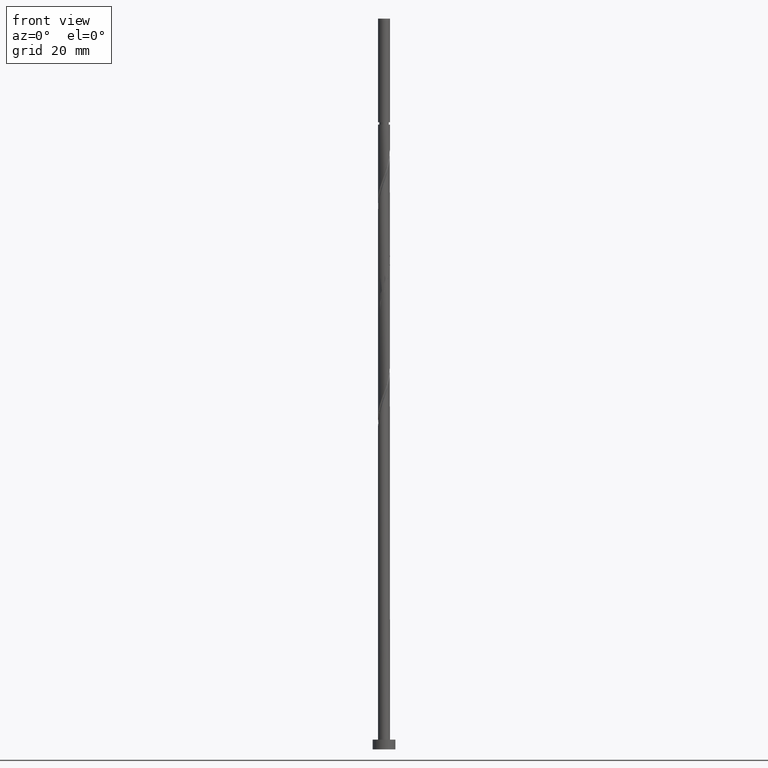
[diagram: clean part render]
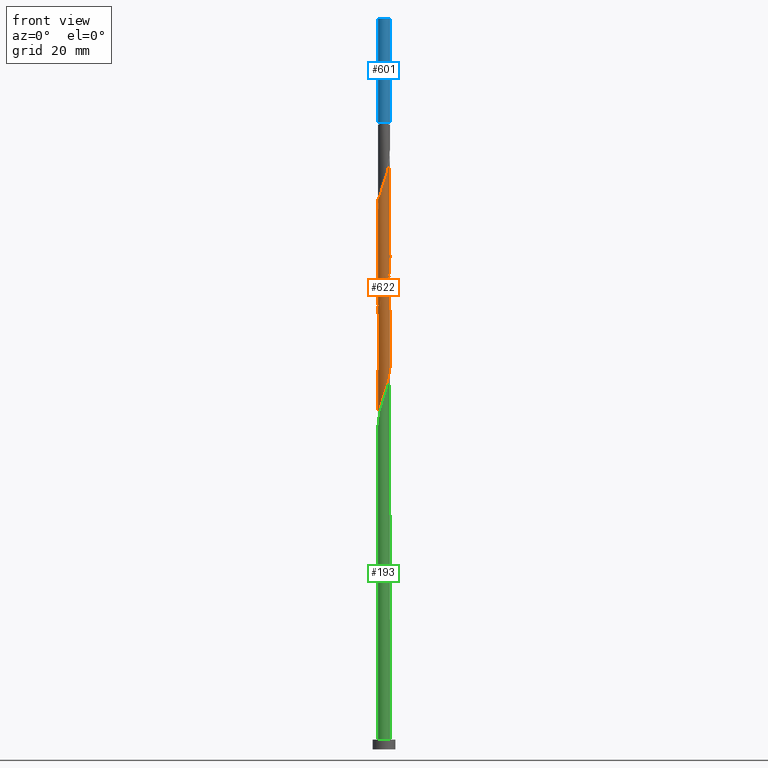
[diagram: same view with three faces highlighted in distinct colors, each labeled with its STEP entity id]
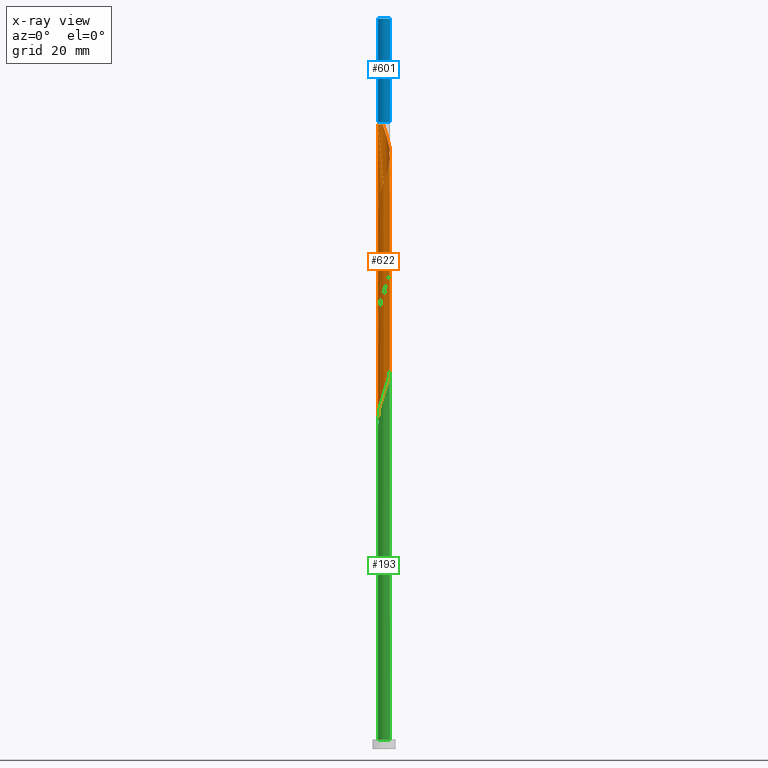
[diagram: x-ray of the same camera — body ghosted, the three highlighted faces saturated]
A machine part, front view with three faces highlighted in distinct colors.
The next image is the same camera in x-ray (body ghosted, the three faces saturated) — at least one of them is partly hidden behind the body in this view.
Their STEP definitions:

[orange] entity #622 — the highlighted cylindrical surface (bore or boss wall) has radius 1.85 mm, axis along (-0, -0, -1).
#7 = CARTESIAN_POINT ( 'NONE',  ( -1.849999999999999645, -2.766450122069689191E-16, 168.4136483083440794 ) ) ;
#8 = ORIENTED_EDGE ( 'NONE', *, *, #311, .T. ) ;
#11 = CARTESIAN_POINT ( 'NONE',  ( 1.224714518025485033, -1.407797719951883186, 113.8778594309117835 ) ) ;
#17 = CARTESIAN_POINT ( 'NONE',  ( 1.764532744969630196, 0.6068313298553991153, 184.7111927642451406 ) ) ;
#19 = CARTESIAN_POINT ( 'NONE',  ( -0.3567350250177434567, 1.831545847880884592, 127.7667483198006408 ) ) ;
#25 = CARTESIAN_POINT ( 'NONE',  ( -1.386031381196460410, 1.225323226882860661, 131.2389705420228836 ) ) ;
#29 = EDGE_CURVE ( 'NONE', #755, #1264, #874, .T. ) ;
#33 = DIRECTION ( 'NONE',  ( -1.000000000000000000, 0.000000000000000000, 0.000000000000000000 ) ) ;
#34 = CARTESIAN_POINT ( 'NONE',  ( -1.407797719951883630, -1.224714518025485255, 138.8778594309117693 ) ) ;
#41 = CARTESIAN_POINT ( 'NONE',  ( 1.542302668961411660, 1.021666519621008629, 121.5167483198006551 ) ) ;
#47 = VERTEX_POINT ( 'NONE', #1036 ) ;
#49 = CARTESIAN_POINT ( 'NONE',  ( -1.846506551455627809, -0.1136378257071205405, 102.0723038753562548 ) ) ;
#69 = VERTEX_POINT ( 'NONE', #1153 ) ;
#87 = CARTESIAN_POINT ( 'NONE',  ( 1.407797719951883630, 1.224714518025485033, 155.5445260975784265 ) ) ;
#96 = CARTESIAN_POINT ( 'NONE',  ( 1.542302668961411660, 1.021666519621008629, 154.8500816531340263 ) ) ;
#97 = CARTESIAN_POINT ( 'NONE',  ( 1.846506551455631806, -0.1136378257071227194, 182.6278594309117693 ) ) ;
#104 = EDGE_LOOP ( 'NONE', ( #1494, #120, #985, #8, #1502, #1125, #489, #373 ) ) ;
#120 = ORIENTED_EDGE ( 'NONE', *, *, #29, .T. ) ;
#126 = CARTESIAN_POINT ( 'NONE',  ( -0.1136378257071217618, -1.846506551455631806, 174.2945260975784834 ) ) ;
#129 = CARTESIAN_POINT ( 'NONE',  ( 0.5876767731171372855, -1.754176732925911475, 111.7945260975784549 ) ) ;
#134 = CARTESIAN_POINT ( 'NONE',  ( -1.813000000000002387, -0.3681453517294508426, 167.3500816531340547 ) ) ;
#142 = CARTESIAN_POINT ( 'NONE',  ( -1.850000000000001865, -0.1859319958229553316, 166.8199413671131879 ) ) ;
#144 = CARTESIAN_POINT ( 'NONE',  ( 1.021666519621008185, -1.542302668961411882, 146.5167483198006835 ) ) ;
#152 = CARTESIAN_POINT ( 'NONE',  ( -1.407797719951883630, -1.224714518025485255, 105.5445260975784691 ) ) ;
#160 = CARTESIAN_POINT ( 'NONE',  ( -1.224714518025485477, 1.407797719951882964, 130.5445260975784549 ) ) ;
#168 = CARTESIAN_POINT ( 'NONE',  ( -1.831545847880884592, -0.3567350250177429016, 102.7667483198006551 ) ) ;
#175 = LINE ( 'NONE', #1589, #683 ) ;
#184 = CARTESIAN_POINT ( 'NONE',  ( -1.812999999999999057, 0.3681453517294506206, 167.3500816531339694 ) ) ;
#190 = CARTESIAN_POINT ( 'NONE',  ( -1.850000000000000089, 0.000000000000000000, 225.0000000000000000 ) ) ;
#194 = CARTESIAN_POINT ( 'NONE',  ( -0.5876767731171377296, 1.754176732925911475, 161.7945260975784265 ) ) ;
#220 = CARTESIAN_POINT ( 'NONE',  ( -1.386031381196464185, -1.225323226882862659, 170.1278594309117977 ) ) ;
#230 = CARTESIAN_POINT ( 'NONE',  ( -0.3681453517295150135, 1.813000000000644096, 192.3500816531340263 ) ) ;
#235 = CARTESIAN_POINT ( 'NONE',  ( 1.224714518025485033, -1.407797719951883186, 147.2111927642451121 ) ) ;
#249 = CARTESIAN_POINT ( 'NONE',  ( -0.1294593736035052345, 1.861467255030375467, 191.6556372086895976 ) ) ;
#251 = CARTESIAN_POINT ( 'NONE',  ( 1.655940494668531215, -0.8248400318346202909, 115.9611927642451121 ) ) ;
#257 = CARTESIAN_POINT ( 'NONE',  ( -1.655940494668535212, -0.8248400318346200688, 168.7389705420229120 ) ) ;
#259 = CARTESIAN_POINT ( 'NONE',  ( -0.6068313298553997814, -1.764532744969626643, 141.6556372086895692 ) ) ;
#269 = CARTESIAN_POINT ( 'NONE',  ( 1.407797719951883630, 1.224714518025485033, 122.2111927642451406 ) ) ;
#277 = CARTESIAN_POINT ( 'NONE',  ( -0.1294593736035025144, -1.861467255030371915, 109.7111927642451263 ) ) ;
#283 = CARTESIAN_POINT ( 'NONE',  ( -1.021666519621009073, 1.542302668961411438, 129.8500816531339979 ) ) ;
#291 = CARTESIAN_POINT ( 'NONE',  ( -1.849999999999999423, -2.258021450986611860E-15, 101.7469816416774222 ) ) ;
#306 = CARTESIAN_POINT ( 'NONE',  ( -1.849999999999998979, 0.1859319958229587455, 167.8802219391548647 ) ) ;
#311 = EDGE_CURVE ( 'NONE', #47, #1092, #175, .T. ) ;
#313 = CARTESIAN_POINT ( 'NONE',  ( -1.547348244367437342, 1.042848733813839468, 165.2667483198006835 ) ) ;
#341 = CARTESIAN_POINT ( 'NONE',  ( 1.676807617970941466, -0.8186185212165344449, 180.5445260975784549 ) ) ;
#355 = CARTESIAN_POINT ( 'NONE',  ( 1.386031381196460410, -1.225323226882861771, 147.9056372086895408 ) ) ;
#362 = EDGE_CURVE ( 'NONE', #755, #1590, #1326, .T. ) ;
#372 = CARTESIAN_POINT ( 'NONE',  ( -1.850000000000002975, 1.181348971045967581E-15, 166.2865149979239447 ) ) ;
#373 = ORIENTED_EDGE ( 'NONE', *, *, #909, .F. ) ;
#375 = CARTESIAN_POINT ( 'NONE',  ( -0.3681453517294506761, -1.812999999999999057, 142.3500816531339694 ) ) ;
#379 = DIRECTION ( 'NONE',  ( -0.000000000000000000, -0.000000000000000000, -1.000000000000000000 ) ) ;
#382 = CARTESIAN_POINT ( 'NONE',  ( 0.1136378257071199854, -1.846506551455628475, 110.4056372086895834 ) ) ;
#388 = CARTESIAN_POINT ( 'NONE',  ( -0.8186185212165344449, -1.676807617970941688, 172.2111927642451690 ) ) ;
#390 = CARTESIAN_POINT ( 'NONE',  ( -1.861467255030371915, 0.1294593736035024589, 134.7111927642451121 ) ) ;
#398 = CARTESIAN_POINT ( 'NONE',  ( 0.3567350250177424575, -1.831545847880884592, 111.1000816531339979 ) ) ;
#410 = CARTESIAN_POINT ( 'NONE',  ( -1.676807617970939690, -0.8186185212165320024, 104.1556372086895550 ) ) ;
#432 = CARTESIAN_POINT ( 'NONE',  ( -0.8186185212165323355, 1.676807617970939690, 162.4889705420228836 ) ) ;
#446 = DIRECTION ( 'NONE',  ( -0.000000000000000000, -0.000000000000000000, -1.000000000000000000 ) ) ;
#450 = CARTESIAN_POINT ( 'NONE',  ( 1.407797719951884741, -1.224714518025488141, 179.1556372086895124 ) ) ;
#466 = CARTESIAN_POINT ( 'NONE',  ( 1.764532744969625977, -0.6068313298554006696, 149.9889705420229120 ) ) ;
#489 = ORIENTED_EDGE ( 'NONE', *, *, #528, .T. ) ;
#500 = CARTESIAN_POINT ( 'NONE',  ( -0.8248400318346194027, -1.655940494668531660, 107.6278594309117551 ) ) ;
#506 = CARTESIAN_POINT ( 'NONE',  ( 1.021666519621011293, 1.542302668961413881, 188.1834149864674259 ) ) ;
#508 = CARTESIAN_POINT ( 'NONE',  ( 1.042848733813840356, 1.547348244367436898, 123.6000816531340121 ) ) ;
#516 = CARTESIAN_POINT ( 'NONE',  ( 0.8186185212165320024, -1.676807617970939690, 112.4889705420228978 ) ) ;
#521 = VECTOR ( 'NONE', #379, 1000.000000000000000 ) ;
#523 = CARTESIAN_POINT ( 'NONE',  ( -1.812999999999999057, 0.3681453517294506206, 134.0167483198007119 ) ) ;
#528 = EDGE_CURVE ( 'NONE', #69, #1303, #1535, .T. ) ;
#532 = CARTESIAN_POINT ( 'NONE',  ( 1.846506551455628475, 0.1136378257071198744, 118.7389705420229120 ) ) ;
#538 = CARTESIAN_POINT ( 'NONE',  ( -1.849999999999999645, -0.05687261056669361964, 101.9101453297055428 ) ) ;
#575 = AXIS2_PLACEMENT_3D ( 'NONE', #1456, #1586, #941 ) ;
#591 = CARTESIAN_POINT ( 'NONE',  ( -1.547348244367440451, -1.042848733813839912, 169.4334149864673691 ) ) ;
#595 = AXIS2_PLACEMENT_3D ( 'NONE', #1162, #1545, #33 ) ;
#622 = ADVANCED_FACE ( 'NONE', ( #1562 ), #819, .T. ) ;
#623 = CARTESIAN_POINT ( 'NONE',  ( -1.224714518025488141, -1.407797719951884741, 170.8223038753561980 ) ) ;
#626 = CARTESIAN_POINT ( 'NONE',  ( 0.3681453517294509536, 1.812999999999999057, 125.6834149864672980 ) ) ;
#633 = CARTESIAN_POINT ( 'NONE',  ( 1.831545847880887257, -0.3567350250177453996, 181.9334149864673691 ) ) ;
#635 = CARTESIAN_POINT ( 'NONE',  ( -0.8248400318346194027, -1.655940494668531660, 140.9611927642451121 ) ) ;
#642 = CARTESIAN_POINT ( 'NONE',  ( 1.831545847880884592, 0.3567350250177424575, 119.4334149864673549 ) ) ;
#649 = CARTESIAN_POINT ( 'NONE',  ( -0.1136378257071206793, 1.846506551455627809, 127.0723038753562264 ) ) ;
#659 = CARTESIAN_POINT ( 'NONE',  ( -1.676807617970939690, -0.8186185212165320024, 137.4889705420229120 ) ) ;
#683 = VECTOR ( 'NONE', #446, 1000.000000000000000 ) ;
#686 = CARTESIAN_POINT ( 'NONE',  ( -1.764532744969626643, 0.6068313298553992263, 166.6556372086895692 ) ) ;
#694 = CARTESIAN_POINT ( 'NONE',  ( -0.3567350250177434567, 1.831545847880884592, 161.1000816531340263 ) ) ;
#712 = CARTESIAN_POINT ( 'NONE',  ( 0.6068313298554008917, 1.764532744969625977, 158.3223038753561696 ) ) ;
#713 = CARTESIAN_POINT ( 'NONE',  ( 0.8186185212165348890, 1.676807617970941466, 188.8778594309118262 ) ) ;
#722 = CARTESIAN_POINT ( 'NONE',  ( 0.1294593736035011822, -1.861467255030374579, 174.9889705420228836 ) ) ;
#739 = CARTESIAN_POINT ( 'NONE',  ( 1.849999999999998979, -0.1859319958229592451, 151.2135552724880938 ) ) ;
#754 = CARTESIAN_POINT ( 'NONE',  ( -1.021666519621011293, -1.542302668961414103, 171.5167483198007119 ) ) ;
#755 = VERTEX_POINT ( 'NONE', #1332 ) ;
#756 = CARTESIAN_POINT ( 'NONE',  ( 1.547348244367436898, -1.042848733813840356, 115.2667483198006835 ) ) ;
#765 = CARTESIAN_POINT ( 'NONE',  ( -1.042848733813839690, -1.547348244367437342, 140.2667483198006835 ) ) ;
#773 = CARTESIAN_POINT ( 'NONE',  ( 1.754176732925912141, 0.5876767731171367304, 120.1278594309117693 ) ) ;
#782 = CARTESIAN_POINT ( 'NONE',  ( 0.8248400318346204019, 1.655940494668531215, 124.2945260975784265 ) ) ;
#790 = CARTESIAN_POINT ( 'NONE',  ( 0.1136378257071199854, -1.846506551455628475, 143.7389705420229120 ) ) ;
#819 = CYLINDRICAL_SURFACE ( 'NONE', #575, 1.850000000000000089 ) ;
#844 = CARTESIAN_POINT ( 'NONE',  ( 1.224714518025488807, 1.407797719951884075, 187.4889705420229120 ) ) ;
#874 = CIRCLE ( 'NONE', #595, 1.849999999999988765 ) ;
#885 = CARTESIAN_POINT ( 'NONE',  ( 1.655940494668535434, 0.8248400318346194027, 185.4056372086895976 ) ) ;
#887 = CARTESIAN_POINT ( 'NONE',  ( 1.861467255030371915, -0.1294593736035026255, 118.0445260975784691 ) ) ;
#894 = CARTESIAN_POINT ( 'NONE',  ( 1.225323226882862659, -1.386031381196464407, 178.4611927642451121 ) ) ;
#901 = CARTESIAN_POINT ( 'NONE',  ( 0.1136378257071228026, 1.846506551455631806, 190.9611927642451406 ) ) ;
#903 = CARTESIAN_POINT ( 'NONE',  ( -1.542302668961411438, -1.021666519621008851, 138.1834149864673691 ) ) ;
#909 = EDGE_CURVE ( 'NONE', #1590, #1303, #1298, .T. ) ;
#912 = CARTESIAN_POINT ( 'NONE',  ( -0.6068313298553997814, -1.764532744969626643, 108.3223038753562548 ) ) ;
#920 = CARTESIAN_POINT ( 'NONE',  ( 1.676807617970940134, 0.8186185212165310032, 120.8223038753562122 ) ) ;
#941 = DIRECTION ( 'NONE',  ( -1.000000000000000000, 0.000000000000000000, 0.000000000000000000 ) ) ;
#971 = CARTESIAN_POINT ( 'NONE',  ( 1.386031381196464629, 1.225323226882861993, 186.7945260975784549 ) ) ;
#980 = CARTESIAN_POINT ( 'NONE',  ( 0.8248400318346204019, 1.655940494668531215, 157.6278594309117693 ) ) ;
#985 = ORIENTED_EDGE ( 'NONE', *, *, #1515, .F. ) ;
#988 = CARTESIAN_POINT ( 'NONE',  ( 0.3681453517294509536, 1.812999999999999057, 159.0167483198006551 ) ) ;
#996 = CARTESIAN_POINT ( 'NONE',  ( 1.655940494668531215, -0.8248400318346202909, 149.2945260975784265 ) ) ;
#1011 = CARTESIAN_POINT ( 'NONE',  ( 1.850000000000000089, 0.05687261056669050407, 151.9101453297055855 ) ) ;
#1017 = CARTESIAN_POINT ( 'NONE',  ( 1.542302668961413437, -1.021666519621011737, 179.8500816531340547 ) ) ;
#1020 = CARTESIAN_POINT ( 'NONE',  ( -1.042848733813839690, -1.547348244367437342, 106.9334149864673549 ) ) ;
#1026 = CARTESIAN_POINT ( 'NONE',  ( -0.5876767731171399500, -1.754176732925914806, 172.9056372086895976 ) ) ;
#1028 = CARTESIAN_POINT ( 'NONE',  ( 1.225323226882861327, 1.386031381196460410, 122.9056372086895692 ) ) ;
#1036 = CARTESIAN_POINT ( 'NONE',  ( -1.850000000000002975, 1.181348971045967581E-15, 166.2865149979239732 ) ) ;
#1037 = CARTESIAN_POINT ( 'NONE',  ( -0.5876767731171377296, 1.754176732925911475, 128.4611927642450837 ) ) ;
#1045 = CARTESIAN_POINT ( 'NONE',  ( -1.846506551455627809, -0.1136378257071205405, 135.4056372086895408 ) ) ;
#1053 = CARTESIAN_POINT ( 'NONE',  ( -1.831545847880884592, -0.3567350250177429016, 136.1000816531339694 ) ) ;
#1076 = CARTESIAN_POINT ( 'NONE',  ( -1.386031381196460410, 1.225323226882860661, 164.5723038753561980 ) ) ;
#1092 = VERTEX_POINT ( 'NONE', #1600 ) ;
#1095 = CARTESIAN_POINT ( 'NONE',  ( 1.754176732925914806, -0.5876767731171401721, 181.2389705420229404 ) ) ;
#1103 = CARTESIAN_POINT ( 'NONE',  ( -0.3681453517295150135, 1.813000000000644318, 192.3500816531340263 ) ) ;
#1112 = CARTESIAN_POINT ( 'NONE',  ( 1.849999999999999423, 1.772023456568963599E-15, 151.7469816416774222 ) ) ;
#1113 = CARTESIAN_POINT ( 'NONE',  ( -1.764532744969630196, -0.6068313298553994484, 168.0445260975784834 ) ) ;
#1122 = CARTESIAN_POINT ( 'NONE',  ( 1.849999999999999645, 1.772023456568963599E-15, 151.7469816416774222 ) ) ;
#1125 = ORIENTED_EDGE ( 'NONE', *, *, #528, .F. ) ;
#1127 = CARTESIAN_POINT ( 'NONE',  ( 1.225323226882861327, 1.386031381196460410, 156.2389705420228552 ) ) ;
#1145 = CARTESIAN_POINT ( 'NONE',  ( -0.3681453517294506761, -1.812999999999999057, 109.0167483198006551 ) ) ;
#1152 = CARTESIAN_POINT ( 'NONE',  ( 1.813000000000002387, 0.3681453517294505096, 184.0167483198007119 ) ) ;
#1153 = CARTESIAN_POINT ( 'NONE',  ( 1.850000000000000089, 2.265596578422603100E-16, 192.3500816531340263 ) ) ;
#1154 = CARTESIAN_POINT ( 'NONE',  ( -1.655940494668531660, 0.8248400318346192917, 132.6278594309117693 ) ) ;
#1155 = EDGE_CURVE ( 'NONE', #1303, #1092, #1179, .T. ) ;
#1162 = CARTESIAN_POINT ( 'NONE',  ( 0.000000000000000000, 0.000000000000000000, 192.3500816531340263 ) ) ;
#1163 = CARTESIAN_POINT ( 'NONE',  ( 1.812999999999999057, -0.3681453517294508426, 117.3500816531339979 ) ) ;
#1169 = CARTESIAN_POINT ( 'NONE',  ( 0.3567350250177424575, -1.831545847880884592, 144.4334149864673407 ) ) ;
#1178 = CARTESIAN_POINT ( 'NONE',  ( -0.8186185212165323355, 1.676807617970939690, 129.1556372086895692 ) ) ;
#1179 =( BOUNDED_CURVE ( )  B_SPLINE_CURVE ( 2, ( #1112, #739, #1607, #466, #996, #1496, #355, #235, #144, #1404, #1523, #1169, #790, #1296, #375, #259, #635, #765, #1420, #34, #903, #659, #1281, #1053, #1045, #390, #523, #1530, #1154, #1537, #25, #160, #283, #1178, #1037, #19, #649, #1273, #626, #1546, #782, #508, #1028, #269, #41, #920, #773, #642, #532, #887, #1163, #1387, #251, #756, #1288, #11, #1266, #516, #129, #398, #382, #277, #1145, #912, #500, #1020, #1413, #152, #1428, #410, #1187, #168, #49, #538, #291 ),
 .UNSPECIFIED., .F., .T. ) 
 B_SPLINE_CURVE_WITH_KNOTS ( ( 3, 2, 2, 2, 2, 2, 2, 2, 2, 2, 2, 2, 2, 2, 2, 2, 2, 2, 2, 2, 2, 2, 2, 2, 2, 2, 2, 2, 2, 2, 2, 2, 2, 2, 2, 2, 2, 3 ),
 ( 0.5545317669814464612, 0.5625000000000000000, 0.5729166666666666297, 0.5833333333333333703, 0.5937500000000000000, 0.6041666666666666297, 0.6145833333333333703, 0.6250000000000000000, 0.6354166666666666297, 0.6458333333333333703, 0.6562500000000000000, 0.6666666666666666297, 0.6770833333333333703, 0.6875000000000000000, 0.6979166666666666297, 0.7083333333333333703, 0.7187500000000000000, 0.7291666666666666297, 0.7395833333333333703, 0.7500000000000000000, 0.7604166666666666297, 0.7708333333333333703, 0.7812500000000000000, 0.7916666666666666297, 0.8020833333333333703, 0.8125000000000000000, 0.8229166666666666297, 0.8333333333333333703, 0.8437500000000000000, 0.8541666666666666297, 0.8645833333333333703, 0.8750000000000000000, 0.8854166666666666297, 0.8958333333333333703, 0.9062500000000000000, 0.9166666666666666297, 0.9270833333333333703, 0.9295317669814463502 ),
 .UNSPECIFIED. ) 
 CURVE ( )  GEOMETRIC_REPRESENTATION_ITEM ( )  RATIONAL_B_SPLINE_CURVE ( ( 0.9062941362546529378, 0.9031415850403574641, 0.9090909090909328194, 0.9013135103398510761, 0.9090909090909328194, 0.9013135103398510761, 0.9090909090909328194, 0.9013135103398510761, 0.9090909090909328194, 0.9013135103398510761, 0.9090909090909328194, 0.9013135103398510761, 0.9090909090909328194, 0.9013135103398510761, 0.9090909090909328194, 0.9013135103398510761, 0.9090909090909328194, 0.9013135103398510761, 0.9090909090909328194, 0.9013135103398510761, 0.9090909090909328194, 0.9013135103398510761, 0.9090909090909328194, 0.9013135103398510761, 0.9090909090909328194, 0.9013135103398510761, 0.9090909090909328194, 0.9013135103398510761, 0.9090909090909328194, 0.9013135103398510761, 0.9090909090909328194, 0.9013135103398510761, 0.9090909090909328194, 0.9013135103398510761, 0.9090909090909328194, 0.9013135103398510761, 0.9090909090909328194, 0.9013135103398510761, 0.9090909090909328194, 0.9013135103398510761, 0.9090909090909328194, 0.9013135103398510761, 0.9090909090909328194, 0.9013135103398510761, 0.9090909090909328194, 0.9013135103398510761, 0.9090909090909328194, 0.9013135103398510761, 0.9090909090909328194, 0.9013135103398510761, 0.9090909090909328194, 0.9013135103398510761, 0.9090909090909328194, 0.9013135103398510761, 0.9090909090909328194, 0.9013135103398510761, 0.9090909090909328194, 0.9013135103398510761, 0.9090909090909328194, 0.9013135103398510761, 0.9090909090909328194, 0.9013135103398510761, 0.9090909090909328194, 0.9013135103398510761, 0.9090909090909328194, 0.9013135103398510761, 0.9090909090909328194, 0.9013135103398510761, 0.9090909090909328194, 0.9013135103398510761, 0.9090909090909328194, 0.9013135103398510761, 0.9090909090909328194, 0.9072628343904264314, 0.9062941362546529378 ) ) 
 REPRESENTATION_ITEM ( '' )  );
#1187 = CARTESIAN_POINT ( 'NONE',  ( -1.754176732925911475, -0.5876767731171375075, 103.4611927642451263 ) ) ;
#1197 = VECTOR ( 'NONE', #1309, 1000.000000000000000 ) ;
#1203 = CARTESIAN_POINT ( 'NONE',  ( -1.655940494668531660, 0.8248400318346192917, 165.9611927642451406 ) ) ;
#1211 = CARTESIAN_POINT ( 'NONE',  ( -0.1136378257071206793, 1.846506551455627809, 160.4056372086895692 ) ) ;
#1229 = CARTESIAN_POINT ( 'NONE',  ( 1.676807617970940134, 0.8186185212165310032, 154.1556372086895692 ) ) ;
#1237 = CARTESIAN_POINT ( 'NONE',  ( 1.754176732925912141, 0.5876767731171367304, 153.4611927642451121 ) ) ;
#1238 = CARTESIAN_POINT ( 'NONE',  ( 1.861467255030374579, 0.1294593736035001830, 183.3223038753562548 ) ) ;
#1244 = CARTESIAN_POINT ( 'NONE',  ( 1.831545847880884592, 0.3567350250177424575, 152.7667483198007403 ) ) ;
#1258 = CARTESIAN_POINT ( 'NONE',  ( 1.849999999999999423, 1.772023456568963599E-15, 151.7469816416774222 ) ) ;
#1264 = VERTEX_POINT ( 'NONE', #230 ) ;
#1266 = CARTESIAN_POINT ( 'NONE',  ( 1.021666519621008185, -1.542302668961411882, 113.1834149864673407 ) ) ;
#1271 = CARTESIAN_POINT ( 'NONE',  ( 1.042848733813839912, -1.547348244367440673, 177.7667483198007119 ) ) ;
#1273 = CARTESIAN_POINT ( 'NONE',  ( 0.1294593736035019316, 1.861467255030371248, 126.3778594309117977 ) ) ;
#1281 = CARTESIAN_POINT ( 'NONE',  ( -1.754176732925911475, -0.5876767731171375075, 136.7945260975784834 ) ) ;
#1288 = CARTESIAN_POINT ( 'NONE',  ( 1.386031381196460410, -1.225323226882861771, 114.5723038753561980 ) ) ;
#1296 = CARTESIAN_POINT ( 'NONE',  ( -0.1294593736035025144, -1.861467255030371915, 143.0445260975784834 ) ) ;
#1298 =( BOUNDED_CURVE ( )  B_SPLINE_CURVE ( 2, ( #1445, #306, #184, #686, #1203, #313, #1076, #1329, #1574, #432, #194, #694, #1211, #1345, #988, #712, #980, #1491, #1127, #87, #96, #1229, #1237, #1244, #1370, #1011, #1258 ),
 .UNSPECIFIED., .F., .T. ) 
 B_SPLINE_CURVE_WITH_KNOTS ( ( 3, 2, 2, 2, 2, 2, 2, 2, 2, 2, 2, 2, 2, 3 ),
 ( 0.4295317669814464057, 0.4375000000000000000, 0.4479166666666666852, 0.4583333333333333148, 0.4687500000000000000, 0.4791666666666666852, 0.4895833333333333148, 0.5000000000000000000, 0.5104166666666666297, 0.5208333333333333703, 0.5312500000000000000, 0.5416666666666666297, 0.5520833333333333703, 0.5545317669814464612 ),
 .UNSPECIFIED. ) 
 CURVE ( )  GEOMETRIC_REPRESENTATION_ITEM ( )  RATIONAL_B_SPLINE_CURVE ( ( 0.9062941362546531598, 0.9031415850403574641, 0.9090909090909328194, 0.9013135103398510761, 0.9090909090909328194, 0.9013135103398510761, 0.9090909090909328194, 0.9013135103398510761, 0.9090909090909328194, 0.9013135103398510761, 0.9090909090909328194, 0.9013135103398510761, 0.9090909090909328194, 0.9013135103398510761, 0.9090909090909328194, 0.9013135103398510761, 0.9090909090909328194, 0.9013135103398510761, 0.9090909090909328194, 0.9013135103398510761, 0.9090909090909328194, 0.9013135103398510761, 0.9090909090909328194, 0.9013135103398510761, 0.9090909090909328194, 0.9072628343904263204, 0.9062941362546529378 ) ) 
 REPRESENTATION_ITEM ( '' )  );
#1303 = VERTEX_POINT ( 'NONE', #1122 ) ;
#1309 = DIRECTION ( 'NONE',  ( -0.000000000000000000, -0.000000000000000000, -1.000000000000000000 ) ) ;
#1326 = LINE ( 'NONE', #190, #1197 ) ;
#1329 = CARTESIAN_POINT ( 'NONE',  ( -1.224714518025485477, 1.407797719951882964, 163.8778594309117977 ) ) ;
#1332 = CARTESIAN_POINT ( 'NONE',  ( -1.849999999999988765, 0.000000000000000000, 192.3500816531340263 ) ) ;
#1345 = CARTESIAN_POINT ( 'NONE',  ( 0.1294593736035019316, 1.861467255030371248, 159.7111927642451121 ) ) ;
#1346 = CARTESIAN_POINT ( 'NONE',  ( 0.8248400318346195137, -1.655940494668535434, 177.0723038753562832 ) ) ;
#1370 = CARTESIAN_POINT ( 'NONE',  ( 1.846506551455628475, 0.1136378257071198744, 152.0723038753562264 ) ) ;
#1385 = CARTESIAN_POINT ( 'NONE',  ( 0.3567350250177455662, 1.831545847880887257, 190.2667483198007119 ) ) ;
#1387 = CARTESIAN_POINT ( 'NONE',  ( 1.764532744969625977, -0.6068313298554006696, 116.6556372086895266 ) ) ;
#1394 = CARTESIAN_POINT ( 'NONE',  ( 0.3681453517294506761, -1.813000000000002387, 175.6834149864673975 ) ) ;
#1395 =( BOUNDED_CURVE ( )  B_SPLINE_CURVE ( 2, ( #372, #142, #134, #1113, #257, #591, #220, #623, #754, #388, #1026, #1402, #126, #722, #1394, #1483, #1346, #1271, #894, #450, #1017, #341, #1095, #633, #97, #1238, #1152, #17, #885, #1593, #971, #844, #506, #713, #1528, #1385, #901, #249, #1103 ),
 .UNSPECIFIED., .F., .T. ) 
 B_SPLINE_CURVE_WITH_KNOTS ( ( 3, 2, 2, 2, 2, 2, 2, 2, 2, 2, 2, 2, 2, 2, 2, 2, 2, 2, 2, 3 ),
 ( 0.5545317669814462391, 0.5625000000000000000, 0.5729166666666667407, 0.5833333333333332593, 0.5937500000000000000, 0.6041666666666667407, 0.6145833333333333703, 0.6250000000000001110, 0.6354166666666668517, 0.6458333333333333703, 0.6562500000000001110, 0.6666666666666668517, 0.6770833333333333703, 0.6875000000000002220, 0.6979166666666669627, 0.7083333333333334814, 0.7187500000000002220, 0.7291666666666669627, 0.7395833333333334814, 0.7500000000000002220 ),
 .UNSPECIFIED. ) 
 CURVE ( )  GEOMETRIC_REPRESENTATION_ITEM ( )  RATIONAL_B_SPLINE_CURVE ( ( 0.9062941362546592661, 0.9031415850403634593, 0.9090909090909388146, 0.9013135103398571824, 0.9090909090909388146, 0.9013135103398571824, 0.9090909090909388146, 0.9013135103398571824, 0.9090909090909388146, 0.9013135103398571824, 0.9090909090909388146, 0.9013135103398571824, 0.9090909090909388146, 0.9013135103398571824, 0.9090909090909388146, 0.9013135103398571824, 0.9090909090909388146, 0.9013135103398571824, 0.9090909090909388146, 0.9013135103398571824, 0.9090909090909388146, 0.9013135103398571824, 0.9090909090909388146, 0.9013135103398571824, 0.9090909090909388146, 0.9013135103398571824, 0.9090909090909388146, 0.9013135103398571824, 0.9090909090909388146, 0.9013135103398571824, 0.9090909090909388146, 0.9013135103398571824, 0.9090909090909388146, 0.9013135103398571824, 0.9090909090909388146, 0.9013135103398571824, 0.9090909090909388146, 0.9013135103398569603, 0.9090909090909390367 ) ) 
 REPRESENTATION_ITEM ( '' )  );
#1402 = CARTESIAN_POINT ( 'NONE',  ( -0.3567350250177446225, -1.831545847880887701, 173.6000816531339979 ) ) ;
#1404 = CARTESIAN_POINT ( 'NONE',  ( 0.8186185212165320024, -1.676807617970939690, 145.8223038753562548 ) ) ;
#1413 = CARTESIAN_POINT ( 'NONE',  ( -1.225323226882861327, -1.386031381196460410, 106.2389705420228552 ) ) ;
#1420 = CARTESIAN_POINT ( 'NONE',  ( -1.225323226882861327, -1.386031381196460410, 139.5723038753561980 ) ) ;
#1428 = CARTESIAN_POINT ( 'NONE',  ( -1.542302668961411438, -1.021666519621008851, 104.8500816531340121 ) ) ;
#1445 = CARTESIAN_POINT ( 'NONE',  ( -1.849999999999999645, -2.766450122069688698E-16, 168.4136483083440794 ) ) ;
#1456 = CARTESIAN_POINT ( 'NONE',  ( 0.000000000000000000, 0.000000000000000000, 225.0000000000000000 ) ) ;
#1483 = CARTESIAN_POINT ( 'NONE',  ( 0.6068313298553993373, -1.764532744969630196, 176.3778594309117977 ) ) ;
#1491 = CARTESIAN_POINT ( 'NONE',  ( 1.042848733813840356, 1.547348244367436898, 156.9334149864673691 ) ) ;
#1494 = ORIENTED_EDGE ( 'NONE', *, *, #362, .F. ) ;
#1496 = CARTESIAN_POINT ( 'NONE',  ( 1.547348244367436898, -1.042848733813840356, 148.6000816531339979 ) ) ;
#1502 = ORIENTED_EDGE ( 'NONE', *, *, #1155, .F. ) ;
#1515 = EDGE_CURVE ( 'NONE', #47, #1264, #1395, .T. ) ;
#1520 = CARTESIAN_POINT ( 'NONE',  ( 1.850000000000000089, 2.265596578422603100E-16, 225.0000000000000000 ) ) ;
#1523 = CARTESIAN_POINT ( 'NONE',  ( 0.5876767731171372855, -1.754176732925911475, 145.1278594309117693 ) ) ;
#1528 = CARTESIAN_POINT ( 'NONE',  ( 0.5876767731171403941, 1.754176732925914806, 189.5723038753562548 ) ) ;
#1530 = CARTESIAN_POINT ( 'NONE',  ( -1.764532744969626643, 0.6068313298553992263, 133.3223038753561980 ) ) ;
#1535 = LINE ( 'NONE', #1520, #521 ) ;
#1537 = CARTESIAN_POINT ( 'NONE',  ( -1.547348244367437342, 1.042848733813839468, 131.9334149864673407 ) ) ;
#1545 = DIRECTION ( 'NONE',  ( -0.000000000000000000, -0.000000000000000000, -1.000000000000000000 ) ) ;
#1546 = CARTESIAN_POINT ( 'NONE',  ( 0.6068313298554008917, 1.764532744969625977, 124.9889705420229120 ) ) ;
#1562 = FACE_OUTER_BOUND ( 'NONE', #104, .T. ) ;
#1574 = CARTESIAN_POINT ( 'NONE',  ( -1.021666519621009073, 1.542302668961411438, 163.1834149864672838 ) ) ;
#1586 = DIRECTION ( 'NONE',  ( -0.000000000000000000, -0.000000000000000000, -1.000000000000000000 ) ) ;
#1589 = CARTESIAN_POINT ( 'NONE',  ( -1.850000000000000089, 0.000000000000000000, 225.0000000000000000 ) ) ;
#1590 = VERTEX_POINT ( 'NONE', #7 ) ;
#1593 = CARTESIAN_POINT ( 'NONE',  ( 1.547348244367440673, 1.042848733813839690, 186.1000816531340547 ) ) ;
#1600 = CARTESIAN_POINT ( 'NONE',  ( -1.849999999999999645, -2.258021450986611860E-15, 101.7469816416774222 ) ) ;
#1607 = CARTESIAN_POINT ( 'NONE',  ( 1.812999999999999057, -0.3681453517294508426, 150.6834149864673691 ) ) ;

[blue] entity #601 — the highlighted cylindrical surface (edge-blend (fillet) strip) has radius 1.85 mm, axis along (-0, -0, -1).
#75 = EDGE_CURVE ( 'NONE', #1327, #823, #103, .T. ) ;
#78 = ORIENTED_EDGE ( 'NONE', *, *, #75, .F. ) ;
#91 = FACE_OUTER_BOUND ( 'NONE', #814, .T. ) ;
#103 = CIRCLE ( 'NONE', #207, 1.849999999999988765 ) ;
#123 = CARTESIAN_POINT ( 'NONE',  ( 1.849999999999988765, 2.265596578422596691E-16, 193.0900816531340070 ) ) ;
#165 = EDGE_CURVE ( 'NONE', #978, #823, #1186, .T. ) ;
#170 = CARTESIAN_POINT ( 'NONE',  ( -1.849999999999988765, 0.000000000000000000, 193.0900816531340070 ) ) ;
#185 = VECTOR ( 'NONE', #334, 1000.000000000000000 ) ;
#197 = DIRECTION ( 'NONE',  ( -1.000000000000000000, 0.000000000000000000, 0.000000000000000000 ) ) ;
#207 = AXIS2_PLACEMENT_3D ( 'NONE', #1168, #1051, #634 ) ;
#213 = DIRECTION ( 'NONE',  ( 0.000000000000000000, 0.000000000000000000, 1.000000000000000000 ) ) ;
#237 = CARTESIAN_POINT ( 'NONE',  ( 1.850000000000000089, 2.265596578422603100E-16, 225.0000000000000000 ) ) ;
#292 = CIRCLE ( 'NONE', #714, 1.850000000000000089 ) ;
#334 = DIRECTION ( 'NONE',  ( -0.000000000000000000, -0.000000000000000000, -1.000000000000000000 ) ) ;
#397 = DIRECTION ( 'NONE',  ( -0.000000000000000000, -0.000000000000000000, -1.000000000000000000 ) ) ;
#428 = CARTESIAN_POINT ( 'NONE',  ( 1.850000000000000089, 2.265596578422603100E-16, 225.0000000000000000 ) ) ;
#541 = VECTOR ( 'NONE', #397, 1000.000000000000000 ) ;
#601 = ADVANCED_FACE ( 'NONE', ( #91 ), #1072, .T. ) ;
#624 = ORIENTED_EDGE ( 'NONE', *, *, #165, .T. ) ;
#634 = DIRECTION ( 'NONE',  ( -1.000000000000000000, 0.000000000000000000, 0.000000000000000000 ) ) ;
#648 = VERTEX_POINT ( 'NONE', #428 ) ;
#714 = AXIS2_PLACEMENT_3D ( 'NONE', #810, #213, #717 ) ;
#717 = DIRECTION ( 'NONE',  ( 1.000000000000000000, 0.000000000000000000, 0.000000000000000000 ) ) ;
#730 = EDGE_CURVE ( 'NONE', #978, #648, #292, .T. ) ;
#810 = CARTESIAN_POINT ( 'NONE',  ( 0.000000000000000000, 0.000000000000000000, 225.0000000000000000 ) ) ;
#814 = EDGE_LOOP ( 'NONE', ( #860, #1200, #624, #78 ) ) ;
#823 = VERTEX_POINT ( 'NONE', #170 ) ;
#860 = ORIENTED_EDGE ( 'NONE', *, *, #1367, .F. ) ;
#978 = VERTEX_POINT ( 'NONE', #1004 ) ;
#1004 = CARTESIAN_POINT ( 'NONE',  ( -1.850000000000000089, 0.000000000000000000, 225.0000000000000000 ) ) ;
#1051 = DIRECTION ( 'NONE',  ( -0.000000000000000000, -0.000000000000000000, -1.000000000000000000 ) ) ;
#1072 = CYLINDRICAL_SURFACE ( 'NONE', #1324, 1.850000000000000089 ) ;
#1168 = CARTESIAN_POINT ( 'NONE',  ( 0.000000000000000000, 0.000000000000000000, 193.0900816531340070 ) ) ;
#1186 = LINE ( 'NONE', #1403, #541 ) ;
#1200 = ORIENTED_EDGE ( 'NONE', *, *, #730, .F. ) ;
#1222 = CARTESIAN_POINT ( 'NONE',  ( 0.000000000000000000, 0.000000000000000000, 225.0000000000000000 ) ) ;
#1324 = AXIS2_PLACEMENT_3D ( 'NONE', #1222, #1570, #197 ) ;
#1327 = VERTEX_POINT ( 'NONE', #123 ) ;
#1367 = EDGE_CURVE ( 'NONE', #648, #1327, #1372, .T. ) ;
#1372 = LINE ( 'NONE', #237, #185 ) ;
#1403 = CARTESIAN_POINT ( 'NONE',  ( -1.850000000000000089, 0.000000000000000000, 225.0000000000000000 ) ) ;
#1570 = DIRECTION ( 'NONE',  ( -0.000000000000000000, -0.000000000000000000, -1.000000000000000000 ) ) ;

[green] entity #193 — the highlighted cylindrical surface (bore or boss wall) has radius 1.85 mm, axis along (-0, -0, -1).
#3 = CARTESIAN_POINT ( 'NONE',  ( -1.676807617970941910, 0.8186185212165341119, 130.5445260975784549 ) ) ;
#14 = CARTESIAN_POINT ( 'NONE',  ( 0.1294593736035011822, -1.861467255030374579, 141.6556372086895692 ) ) ;
#47 = VERTEX_POINT ( 'NONE', #1036 ) ;
#51 = CARTESIAN_POINT ( 'NONE',  ( 1.547348244367440673, 1.042848733813839690, 152.7667483198006835 ) ) ;
#57 = CARTESIAN_POINT ( 'NONE',  ( 1.021666519621011293, 1.542302668961413881, 154.8500816531340263 ) ) ;
#64 = CARTESIAN_POINT ( 'NONE',  ( -1.850000000000002975, 1.181348971045967581E-15, 166.2865149979239447 ) ) ;
#71 = CARTESIAN_POINT ( 'NONE',  ( 1.224714518025488807, 1.407797719951884075, 154.1556372086895976 ) ) ;
#74 = CARTESIAN_POINT ( 'NONE',  ( -1.850000000000002753, -2.003807115445059389E-15, 99.61984833125730177 ) ) ;
#100 = CARTESIAN_POINT ( 'NONE',  ( -1.542302668961414103, 1.021666519621011071, 96.51674831980071190 ) ) ;
#101 = CARTESIAN_POINT ( 'NONE',  ( 0.6068313298553993373, -1.764532744969630196, 109.7111927642451263 ) ) ;
#108 = CARTESIAN_POINT ( 'NONE',  ( -0.1294593736034999887, 1.861467255030374579, 124.9889705420228694 ) ) ;
#111 = ORIENTED_EDGE ( 'NONE', *, *, #1174, .T. ) ;
#114 =( BOUNDED_CURVE ( )  B_SPLINE_CURVE ( 2, ( #1246, #1349, #1624, #857, #1381, #1365, #100, #485, #1609, #1506, #460, #750, #990 ),
 .UNSPECIFIED., .F., .T. ) 
 B_SPLINE_CURVE_WITH_KNOTS ( ( 3, 2, 2, 2, 2, 2, 3 ),
 ( 0.000000000000000000, 0.01041666666666662966, 0.02083333333333337034, 0.03125000000000000000, 0.04166666666666662966, 0.05208333333333337034, 0.05453176698144612811 ),
 .UNSPECIFIED. ) 
 CURVE ( )  GEOMETRIC_REPRESENTATION_ITEM ( )  RATIONAL_B_SPLINE_CURVE ( ( 0.9090909090909388146, 0.9013135103398571824, 0.9090909090909388146, 0.9013135103398571824, 0.9090909090909388146, 0.9013135103398571824, 0.9090909090909388146, 0.9013135103398571824, 0.9090909090909388146, 0.9013135103398571824, 0.9090909090909388146, 0.9072628343904326487, 0.9062941362546592661 ) ) 
 REPRESENTATION_ITEM ( '' )  );
#116 = CARTESIAN_POINT ( 'NONE',  ( 1.861467255030374579, 0.1294593736035001830, 116.6556372086895550 ) ) ;
#121 = CARTESIAN_POINT ( 'NONE',  ( -1.386031381196460410, 1.225323226882860661, 97.90563720868956921 ) ) ;
#175 = LINE ( 'NONE', #1589, #683 ) ;
#177 = CARTESIAN_POINT ( 'NONE',  ( 1.542302668961413437, -1.021666519621011737, 146.5167483198007119 ) ) ;
#193 = ADVANCED_FACE ( 'NONE', ( #911 ), #1295, .T. ) ;
#200 = ORIENTED_EDGE ( 'NONE', *, *, #1543, .T. ) ;
#202 = CARTESIAN_POINT ( 'NONE',  ( 0.1136378257071228026, 1.846506551455631806, 157.6278594309118546 ) ) ;
#210 = CARTESIAN_POINT ( 'NONE',  ( 0.000000000000000000, 0.000000000000000000, 92.35008165313402628 ) ) ;
#219 = CARTESIAN_POINT ( 'NONE',  ( -1.655940494668531660, 0.8248400318346192917, 99.29452609757842652 ) ) ;
#223 = CARTESIAN_POINT ( 'NONE',  ( 0.8186185212165348890, 1.676807617970941466, 122.2111927642451263 ) ) ;
#225 = ORIENTED_EDGE ( 'NONE', *, *, #1100, .T. ) ;
#227 = DIRECTION ( 'NONE',  ( -0.000000000000000000, -0.000000000000000000, -1.000000000000000000 ) ) ;
#231 = CARTESIAN_POINT ( 'NONE',  ( 1.021666519621011293, 1.542302668961413881, 121.5167483198007119 ) ) ;
#242 = VERTEX_POINT ( 'NONE', #1419 ) ;
#244 = CARTESIAN_POINT ( 'NONE',  ( -1.547348244367437342, 1.042848733813839468, 98.60008165313398365 ) ) ;
#254 = CARTESIAN_POINT ( 'NONE',  ( -1.861467255030374579, -0.1294593736035016263, 133.3223038753561980 ) ) ;
#267 = DIRECTION ( 'NONE',  ( -1.000000000000000000, 0.000000000000000000, 0.000000000000000000 ) ) ;
#272 = CARTESIAN_POINT ( 'NONE',  ( -1.655940494668535212, -0.8248400318346200688, 135.4056372086896260 ) ) ;
#279 = CARTESIAN_POINT ( 'NONE',  ( -1.764532744969630196, -0.6068313298553994484, 134.7111927642451121 ) ) ;
#299 = CARTESIAN_POINT ( 'NONE',  ( 1.225323226882862659, -1.386031381196464407, 145.1278594309118262 ) ) ;
#311 = EDGE_CURVE ( 'NONE', #47, #1092, #175, .T. ) ;
#316 = CARTESIAN_POINT ( 'NONE',  ( -1.813000000000002387, -0.3681453517294508426, 100.6834149864673833 ) ) ;
#321 = CARTESIAN_POINT ( 'NONE',  ( -1.831545847880887701, 0.3567350250177445115, 165.2667483198006835 ) ) ;
#329 = CARTESIAN_POINT ( 'NONE',  ( 0.3567350250177455662, 1.831545847880887257, 156.9334149864673407 ) ) ;
#351 = CARTESIAN_POINT ( 'NONE',  ( 1.764532744969630196, 0.6068313298553991153, 118.0445260975784407 ) ) ;
#358 = CARTESIAN_POINT ( 'NONE',  ( 0.5876767731171403941, 1.754176732925914806, 122.9056372086896118 ) ) ;
#361 = AXIS2_PLACEMENT_3D ( 'NONE', #507, #772, #267 ) ;
#365 = DIRECTION ( 'NONE',  ( 0.000000000000000000, 0.000000000000000000, 1.000000000000000000 ) ) ;
#368 = CARTESIAN_POINT ( 'NONE',  ( -1.542302668961414103, 1.021666519621011071, 129.8500816531340547 ) ) ;
#381 = ORIENTED_EDGE ( 'NONE', *, *, #1080, .F. ) ;
#409 = ORIENTED_EDGE ( 'NONE', *, *, #1254, .F. ) ;
#418 = CARTESIAN_POINT ( 'NONE',  ( -1.407797719951884741, 1.224714518025487919, 162.4889705420228836 ) ) ;
#424 = VERTEX_POINT ( 'NONE', #1082 ) ;
#440 = CARTESIAN_POINT ( 'NONE',  ( 1.764532744969630196, 0.6068313298553991153, 151.3778594309117693 ) ) ;
#446 = DIRECTION ( 'NONE',  ( -0.000000000000000000, -0.000000000000000000, -1.000000000000000000 ) ) ;
#449 = CARTESIAN_POINT ( 'NONE',  ( 1.655940494668535434, 0.8248400318346194027, 152.0723038753563117 ) ) ;
#457 = CARTESIAN_POINT ( 'NONE',  ( -0.1136378257071206793, 1.846506551455627809, 93.73897054202288359 ) ) ;
#460 = CARTESIAN_POINT ( 'NONE',  ( -1.846506551455631806, 0.1136378257071216508, 99.29452609757849757 ) ) ;
#461 = CARTESIAN_POINT ( 'NONE',  ( -0.3567350250177446225, -1.831545847880887701, 106.9334149864673265 ) ) ;
#468 = CARTESIAN_POINT ( 'NONE',  ( -0.8186185212165344449, -1.676807617970941688, 105.5445260975784691 ) ) ;
#469 = VECTOR ( 'NONE', #227, 1000.000000000000000 ) ;
#477 = CARTESIAN_POINT ( 'NONE',  ( -0.1136378257071217618, -1.846506551455631806, 107.6278594309117977 ) ) ;
#483 = CARTESIAN_POINT ( 'NONE',  ( 0.000000000000000000, 0.000000000000000000, 3.000000000000000000 ) ) ;
#485 = CARTESIAN_POINT ( 'NONE',  ( -1.676807617970941910, 0.8186185212165341119, 97.21119276424509792 ) ) ;
#486 = CARTESIAN_POINT ( 'NONE',  ( 1.225323226882862659, -1.386031381196464407, 111.7945260975784691 ) ) ;
#491 = CARTESIAN_POINT ( 'NONE',  ( -1.021666519621009073, 1.542302668961411438, 96.51674831980066926 ) ) ;
#494 = CARTESIAN_POINT ( 'NONE',  ( -1.754176732925914806, 0.5876767731171397280, 131.2389705420229404 ) ) ;
#499 = VERTEX_POINT ( 'NONE', #1132 ) ;
#507 = CARTESIAN_POINT ( 'NONE',  ( 0.000000000000000000, 0.000000000000000000, 225.0000000000000000 ) ) ;
#525 = CARTESIAN_POINT ( 'NONE',  ( -1.386031381196464185, -1.225323226882862659, 136.7945260975785118 ) ) ;
#540 = CARTESIAN_POINT ( 'NONE',  ( 1.386031381196464629, 1.225323226882861993, 153.4611927642451690 ) ) ;
#550 = CARTESIAN_POINT ( 'NONE',  ( -1.542302668961414103, 1.021666519621011071, 163.1834149864673407 ) ) ;
#564 = EDGE_LOOP ( 'NONE', ( #1317, #1361, #225, #111, #1272, #1257, #409, #200, #381 ) ) ;
#568 = CARTESIAN_POINT ( 'NONE',  ( -1.547348244367440451, -1.042848733813839912, 102.7667483198007119 ) ) ;
#574 = CARTESIAN_POINT ( 'NONE',  ( -1.754176732925914806, 0.5876767731171397280, 164.5723038753562548 ) ) ;
#590 = CARTESIAN_POINT ( 'NONE',  ( -1.224714518025485477, 1.407797719951882964, 97.21119276424509792 ) ) ;
#593 = CARTESIAN_POINT ( 'NONE',  ( 1.676807617970941466, -0.8186185212165344449, 113.8778594309117977 ) ) ;
#608 = CARTESIAN_POINT ( 'NONE',  ( -0.3567350250177434567, 1.831545847880884592, 94.43341498646735488 ) ) ;
#612 = CARTESIAN_POINT ( 'NONE',  ( -0.8248400318346201798, 1.655940494668535212, 127.0723038753562406 ) ) ;
#617 = CARTESIAN_POINT ( 'NONE',  ( 0.1294593736035019316, 1.861467255030371248, 93.04452609757845494 ) ) ;
#619 = CARTESIAN_POINT ( 'NONE',  ( 1.547348244367440673, 1.042848733813839690, 119.4334149864673691 ) ) ;
#629 = CARTESIAN_POINT ( 'NONE',  ( -0.5876767731171399500, -1.754176732925914806, 139.5723038753562548 ) ) ;
#661 = CARTESIAN_POINT ( 'NONE',  ( -1.224714518025488141, -1.407797719951884741, 137.4889705420228836 ) ) ;
#668 = CARTESIAN_POINT ( 'NONE',  ( 0.000000000000000000, 0.000000000000000000, 3.000000000000000000 ) ) ;
#683 = VECTOR ( 'NONE', #446, 1000.000000000000000 ) ;
#698 = CARTESIAN_POINT ( 'NONE',  ( -1.764532744969630196, -0.6068313298553994484, 101.3778594309117835 ) ) ;
#703 = CARTESIAN_POINT ( 'NONE',  ( 1.861467255030374579, 0.1294593736035001830, 149.9889705420228836 ) ) ;
#725 = CARTESIAN_POINT ( 'NONE',  ( 0.3681453517294509536, 1.812999999999999057, 92.35008165313402628 ) ) ;
#726 =( BOUNDED_CURVE ( )  B_SPLINE_CURVE ( 2, ( #1355, #1631, #1379, #1363, #219, #244, #121, #590, #491, #843, #1102, #608, #457, #617, #1120 ),
 .UNSPECIFIED., .F., .T. ) 
 B_SPLINE_CURVE_WITH_KNOTS ( ( 3, 2, 2, 2, 2, 2, 2, 3 ),
 ( 0.9295317669814463502, 0.9375000000000000000, 0.9479166666666666297, 0.9583333333333333703, 0.9687500000000000000, 0.9791666666666666297, 0.9895833333333333703, 1.000000000000000000 ),
 .UNSPECIFIED. ) 
 CURVE ( )  GEOMETRIC_REPRESENTATION_ITEM ( )  RATIONAL_B_SPLINE_CURVE ( ( 0.9062941362546529378, 0.9031415850403572421, 0.9090909090909328194, 0.9013135103398510761, 0.9090909090909328194, 0.9013135103398510761, 0.9090909090909328194, 0.9013135103398510761, 0.9090909090909328194, 0.9013135103398510761, 0.9090909090909328194, 0.9013135103398510761, 0.9090909090909328194, 0.9013135103398510761, 0.9090909090909328194 ) ) 
 REPRESENTATION_ITEM ( '' )  );
#727 = CARTESIAN_POINT ( 'NONE',  ( 0.3681453517294506761, -1.813000000000002387, 109.0167483198006977 ) ) ;
#735 = CARTESIAN_POINT ( 'NONE',  ( 0.1136378257071228026, 1.846506551455631806, 124.2945260975784691 ) ) ;
#741 = CARTESIAN_POINT ( 'NONE',  ( -0.6068313298553996704, 1.764532744969629752, 126.3778594309117835 ) ) ;
#750 = CARTESIAN_POINT ( 'NONE',  ( -1.850000000000002753, 0.05687261056669979525, 99.45668464322913849 ) ) ;
#759 = CARTESIAN_POINT ( 'NONE',  ( 1.042848733813839912, -1.547348244367440673, 111.1000816531340121 ) ) ;
#772 = DIRECTION ( 'NONE',  ( -0.000000000000000000, -0.000000000000000000, -1.000000000000000000 ) ) ;
#776 = CARTESIAN_POINT ( 'NONE',  ( -0.1136378257071217618, -1.846506551455631806, 140.9611927642451406 ) ) ;
#783 = EDGE_CURVE ( 'NONE', #1613, #47, #1248, .T. ) ;
#798 = DIRECTION ( 'NONE',  ( 1.000000000000000000, 0.000000000000000000, 0.000000000000000000 ) ) ;
#816 = CARTESIAN_POINT ( 'NONE',  ( 1.676807617970941466, -0.8186185212165344449, 147.2111927642451121 ) ) ;
#843 = CARTESIAN_POINT ( 'NONE',  ( -0.8186185212165323355, 1.676807617970939690, 95.82230387535626903 ) ) ;
#857 = CARTESIAN_POINT ( 'NONE',  ( -1.042848733813840578, 1.547348244367440451, 94.43341498646735488 ) ) ;
#858 = CARTESIAN_POINT ( 'NONE',  ( 0.1294593736035011822, -1.861467255030374579, 108.3223038753562406 ) ) ;
#865 = CARTESIAN_POINT ( 'NONE',  ( 1.655940494668535434, 0.8248400318346194027, 118.7389705420229120 ) ) ;
#881 = CARTESIAN_POINT ( 'NONE',  ( 1.386031381196464629, 1.225323226882861993, 120.1278594309117977 ) ) ;
#891 = CARTESIAN_POINT ( 'NONE',  ( -1.831545847880887701, 0.3567350250177445115, 131.9334149864673122 ) ) ;
#908 = AXIS2_PLACEMENT_3D ( 'NONE', #210, #1263, #1142 ) ;
#911 = FACE_OUTER_BOUND ( 'NONE', #564, .T. ) ;
#937 = CARTESIAN_POINT ( 'NONE',  ( 1.846506551455631806, -0.1136378257071227194, 149.2945260975785118 ) ) ;
#953 = CARTESIAN_POINT ( 'NONE',  ( 1.813000000000002387, 0.3681453517294505096, 150.6834149864673975 ) ) ;
#958 = EDGE_CURVE ( 'NONE', #499, #424, #1173, .T. ) ;
#963 = CARTESIAN_POINT ( 'NONE',  ( -1.042848733813840578, 1.547348244367440451, 161.1000816531339410 ) ) ;
#970 = CARTESIAN_POINT ( 'NONE',  ( -0.8248400318346201798, 1.655940494668535212, 160.4056372086895976 ) ) ;
#990 = CARTESIAN_POINT ( 'NONE',  ( -1.850000000000002753, -2.003807115445059389E-15, 99.61984833125730177 ) ) ;
#991 = CARTESIAN_POINT ( 'NONE',  ( 1.831545847880887257, -0.3567350250177453996, 115.2667483198006693 ) ) ;
#999 = CARTESIAN_POINT ( 'NONE',  ( 1.224714518025488807, 1.407797719951884075, 120.8223038753562548 ) ) ;
#1006 = CARTESIAN_POINT ( 'NONE',  ( -1.225323226882863104, 1.386031381196464185, 128.4611927642451690 ) ) ;
#1014 = CIRCLE ( 'NONE', #908, 1.850000000000000089 ) ;
#1023 = CARTESIAN_POINT ( 'NONE',  ( 0.3681453517294506761, -1.813000000000002387, 142.3500816531340263 ) ) ;
#1031 = CARTESIAN_POINT ( 'NONE',  ( -0.8186185212165344449, -1.676807617970941688, 138.8778594309117409 ) ) ;
#1036 = CARTESIAN_POINT ( 'NONE',  ( -1.850000000000002975, 1.181348971045967581E-15, 166.2865149979239732 ) ) ;
#1061 = CARTESIAN_POINT ( 'NONE',  ( 0.5876767731171403941, 1.754176732925914806, 156.2389705420229689 ) ) ;
#1069 = CARTESIAN_POINT ( 'NONE',  ( -0.6068313298553996704, 1.764532744969629752, 159.7111927642451406 ) ) ;
#1080 = EDGE_CURVE ( 'NONE', #1092, #1227, #726, .T. ) ;
#1082 = CARTESIAN_POINT ( 'NONE',  ( -1.850000000000000089, 0.000000000000000000, 3.000000000000000000 ) ) ;
#1085 = CARTESIAN_POINT ( 'NONE',  ( 1.754176732925914806, -0.5876767731171401721, 147.9056372086895976 ) ) ;
#1088 = CARTESIAN_POINT ( 'NONE',  ( -1.386031381196464185, -1.225323226882862659, 103.4611927642451121 ) ) ;
#1092 = VERTEX_POINT ( 'NONE', #1600 ) ;
#1094 = CARTESIAN_POINT ( 'NONE',  ( -1.846506551455631806, 0.1136378257071216508, 165.9611927642451406 ) ) ;
#1100 = EDGE_CURVE ( 'NONE', #1613, #424, #1252, .T. ) ;
#1102 = CARTESIAN_POINT ( 'NONE',  ( -0.5876767731171377296, 1.754176732925911475, 95.12785943091178353 ) ) ;
#1107 = CARTESIAN_POINT ( 'NONE',  ( 1.813000000000002387, 0.3681453517294505096, 117.3500816531340405 ) ) ;
#1115 = CARTESIAN_POINT ( 'NONE',  ( 1.542302668961413437, -1.021666519621011737, 113.1834149864673691 ) ) ;
#1120 = CARTESIAN_POINT ( 'NONE',  ( 0.3681453517294509536, 1.812999999999999057, 92.35008165313401207 ) ) ;
#1130 = CARTESIAN_POINT ( 'NONE',  ( -1.021666519621011293, -1.542302668961414103, 104.8500816531340263 ) ) ;
#1132 = CARTESIAN_POINT ( 'NONE',  ( 1.850000000000000089, 0.000000000000000000, 3.000000000000000000 ) ) ;
#1135 = DIRECTION ( 'NONE',  ( 1.000000000000000000, 0.000000000000000000, 0.000000000000000000 ) ) ;
#1138 = CARTESIAN_POINT ( 'NONE',  ( 0.3567350250177455662, 1.831545847880887257, 123.6000816531340263 ) ) ;
#1142 = DIRECTION ( 'NONE',  ( -1.000000000000000000, 0.000000000000000000, 0.000000000000000000 ) ) ;
#1148 = CARTESIAN_POINT ( 'NONE',  ( -0.3567350250177446225, -1.831545847880887701, 140.2667483198007119 ) ) ;
#1149 = AXIS2_PLACEMENT_3D ( 'NONE', #483, #365, #1135 ) ;
#1166 = CARTESIAN_POINT ( 'NONE',  ( -1.813000000000002387, -0.3681453517294508426, 134.0167483198007119 ) ) ;
#1173 = CIRCLE ( 'NONE', #1149, 1.850000000000000089 ) ;
#1174 = EDGE_CURVE ( 'NONE', #424, #499, #1377, .T. ) ;
#1193 = CARTESIAN_POINT ( 'NONE',  ( 1.831545847880887257, -0.3567350250177453996, 148.6000816531339694 ) ) ;
#1214 = CARTESIAN_POINT ( 'NONE',  ( -1.655940494668535212, -0.8248400318346200688, 102.0723038753562406 ) ) ;
#1219 = CARTESIAN_POINT ( 'NONE',  ( 1.407797719951884741, -1.224714518025488141, 145.8223038753562832 ) ) ;
#1227 = VERTEX_POINT ( 'NONE', #725 ) ;
#1230 = CARTESIAN_POINT ( 'NONE',  ( -1.850000000000002753, -2.003807115445059389E-15, 99.61984833125730177 ) ) ;
#1246 = CARTESIAN_POINT ( 'NONE',  ( -0.3681453517294503430, 1.813000000000002387, 92.35008165313402628 ) ) ;
#1248 =( BOUNDED_CURVE ( )  B_SPLINE_CURVE ( 2, ( #74, #1467, #316, #698, #1214, #568, #1088, #1340, #1130, #468, #1617, #461, #477, #858, #727, #101, #1486, #759, #486, #1359, #1115, #593, #1382, #991, #1373, #116, #1107, #351, #865, #619, #881, #999, #231, #223, #358, #1138, #735, #108, #1499, #741, #612, #1625, #1006, #1507, #368, #3, #494, #891, #1390, #254, #1166, #279, #272, #1423, #525, #661, #1533, #1031, #629, #1148, #776, #14, #1023, #1399, #1311, #1583, #299, #1219, #177, #816, #1085, #1193, #937, #703, #953, #440, #449, #51, #540, #71, #57, #1336, #1061, #329, #202, #1567, #1453, #1069, #970, #963, #1464, #418, #550, #1435, #574, #321, #1094, #1592, #64 ),
 .UNSPECIFIED., .F., .T. ) 
 B_SPLINE_CURVE_WITH_KNOTS ( ( 3, 2, 2, 2, 2, 2, 2, 2, 2, 2, 2, 2, 2, 2, 2, 2, 2, 2, 2, 2, 2, 2, 2, 2, 2, 2, 2, 2, 2, 2, 2, 2, 2, 2, 2, 2, 2, 2, 2, 2, 2, 2, 2, 2, 2, 2, 2, 2, 2, 3 ),
 ( 0.05453176698144612811, 0.06250000000000000000, 0.07291666666666662966, 0.08333333333333337034, 0.09375000000000000000, 0.1041666666666666297, 0.1145833333333333703, 0.1250000000000000000, 0.1354166666666666297, 0.1458333333333333703, 0.1562500000000000000, 0.1666666666666666297, 0.1770833333333333703, 0.1875000000000000000, 0.1979166666666666297, 0.2083333333333333703, 0.2187500000000000000, 0.2291666666666666297, 0.2395833333333333703, 0.2500000000000000000, 0.2604166666666666297, 0.2708333333333333703, 0.2812500000000000000, 0.2916666666666666297, 0.3020833333333333703, 0.3125000000000000000, 0.3229166666666666297, 0.3333333333333333703, 0.3437500000000000000, 0.3541666666666666297, 0.3645833333333333703, 0.3750000000000000000, 0.3854166666666666297, 0.3958333333333333703, 0.4062500000000000000, 0.4166666666666666297, 0.4270833333333333703, 0.4375000000000000000, 0.4479166666666666297, 0.4583333333333333703, 0.4687500000000000000, 0.4791666666666666297, 0.4895833333333333703, 0.5000000000000000000, 0.5104166666666667407, 0.5208333333333332593, 0.5312500000000000000, 0.5416666666666667407, 0.5520833333333332593, 0.5545317669814462391 ),
 .UNSPECIFIED. ) 
 CURVE ( )  GEOMETRIC_REPRESENTATION_ITEM ( )  RATIONAL_B_SPLINE_CURVE ( ( 0.9062941362546592661, 0.9031415850403632373, 0.9090909090909388146, 0.9013135103398571824, 0.9090909090909388146, 0.9013135103398571824, 0.9090909090909388146, 0.9013135103398571824, 0.9090909090909388146, 0.9013135103398571824, 0.9090909090909388146, 0.9013135103398571824, 0.9090909090909388146, 0.9013135103398571824, 0.9090909090909388146, 0.9013135103398571824, 0.9090909090909388146, 0.9013135103398571824, 0.9090909090909388146, 0.9013135103398571824, 0.9090909090909388146, 0.9013135103398571824, 0.9090909090909388146, 0.9013135103398571824, 0.9090909090909388146, 0.9013135103398571824, 0.9090909090909388146, 0.9013135103398571824, 0.9090909090909388146, 0.9013135103398571824, 0.9090909090909388146, 0.9013135103398571824, 0.9090909090909388146, 0.9013135103398571824, 0.9090909090909388146, 0.9013135103398571824, 0.9090909090909388146, 0.9013135103398571824, 0.9090909090909388146, 0.9013135103398571824, 0.9090909090909388146, 0.9013135103398571824, 0.9090909090909388146, 0.9013135103398571824, 0.9090909090909388146, 0.9013135103398571824, 0.9090909090909388146, 0.9013135103398571824, 0.9090909090909388146, 0.9013135103398571824, 0.9090909090909388146, 0.9013135103398571824, 0.9090909090909388146, 0.9013135103398571824, 0.9090909090909388146, 0.9013135103398571824, 0.9090909090909388146, 0.9013135103398571824, 0.9090909090909388146, 0.9013135103398571824, 0.9090909090909388146, 0.9013135103398571824, 0.9090909090909388146, 0.9013135103398571824, 0.9090909090909388146, 0.9013135103398571824, 0.9090909090909388146, 0.9013135103398571824, 0.9090909090909388146, 0.9013135103398571824, 0.9090909090909388146, 0.9013135103398571824, 0.9090909090909388146, 0.9013135103398571824, 0.9090909090909388146, 0.9013135103398571824, 0.9090909090909388146, 0.9013135103398571824, 0.9090909090909388146, 0.9013135103398571824, 0.9090909090909388146, 0.9013135103398571824, 0.9090909090909388146, 0.9013135103398571824, 0.9090909090909388146, 0.9013135103398571824, 0.9090909090909388146, 0.9013135103398571824, 0.9090909090909388146, 0.9013135103398571824, 0.9090909090909388146, 0.9013135103398571824, 0.9090909090909388146, 0.9013135103398571824, 0.9090909090909388146, 0.9013135103398571824, 0.9090909090909388146, 0.9072628343904326487, 0.9062941362546592661 ) ) 
 REPRESENTATION_ITEM ( '' )  );
#1252 = LINE ( 'NONE', #1482, #469 ) ;
#1254 = EDGE_CURVE ( 'NONE', #242, #1613, #114, .T. ) ;
#1257 = ORIENTED_EDGE ( 'NONE', *, *, #1100, .F. ) ;
#1263 = DIRECTION ( 'NONE',  ( 0.000000000000000000, -0.000000000000000000, -1.000000000000000000 ) ) ;
#1272 = ORIENTED_EDGE ( 'NONE', *, *, #958, .T. ) ;
#1295 = CYLINDRICAL_SURFACE ( 'NONE', #361, 1.850000000000000089 ) ;
#1311 = CARTESIAN_POINT ( 'NONE',  ( 0.8248400318346195137, -1.655940494668535434, 143.7389705420229404 ) ) ;
#1317 = ORIENTED_EDGE ( 'NONE', *, *, #311, .F. ) ;
#1336 = CARTESIAN_POINT ( 'NONE',  ( 0.8186185212165348890, 1.676807617970941466, 155.5445260975784549 ) ) ;
#1340 = CARTESIAN_POINT ( 'NONE',  ( -1.224714518025488141, -1.407797719951884741, 104.1556372086895408 ) ) ;
#1349 = CARTESIAN_POINT ( 'NONE',  ( -0.6068313298553996704, 1.764532744969629752, 93.04452609757844073 ) ) ;
#1355 = CARTESIAN_POINT ( 'NONE',  ( -1.849999999999999423, -2.258021450986611860E-15, 101.7469816416774222 ) ) ;
#1359 = CARTESIAN_POINT ( 'NONE',  ( 1.407797719951884741, -1.224714518025488141, 112.4889705420228836 ) ) ;
#1361 = ORIENTED_EDGE ( 'NONE', *, *, #783, .F. ) ;
#1363 = CARTESIAN_POINT ( 'NONE',  ( -1.764532744969626643, 0.6068313298553992263, 99.98897054202291201 ) ) ;
#1365 = CARTESIAN_POINT ( 'NONE',  ( -1.407797719951884741, 1.224714518025487919, 95.82230387535624061 ) ) ;
#1373 = CARTESIAN_POINT ( 'NONE',  ( 1.846506551455631806, -0.1136378257071227194, 115.9611927642451406 ) ) ;
#1377 = CIRCLE ( 'NONE', #1611, 1.850000000000000089 ) ;
#1379 = CARTESIAN_POINT ( 'NONE',  ( -1.812999999999999057, 0.3681453517294506206, 100.6834149864673407 ) ) ;
#1381 = CARTESIAN_POINT ( 'NONE',  ( -1.225323226882863104, 1.386031381196464185, 95.12785943091185459 ) ) ;
#1382 = CARTESIAN_POINT ( 'NONE',  ( 1.754176732925914806, -0.5876767731171401721, 114.5723038753562690 ) ) ;
#1390 = CARTESIAN_POINT ( 'NONE',  ( -1.846506551455631806, 0.1136378257071216508, 132.6278594309117977 ) ) ;
#1399 = CARTESIAN_POINT ( 'NONE',  ( 0.6068313298553993373, -1.764532744969630196, 143.0445260975784265 ) ) ;
#1419 = CARTESIAN_POINT ( 'NONE',  ( -0.3681453517294503430, 1.813000000000002387, 92.35008165313402628 ) ) ;
#1423 = CARTESIAN_POINT ( 'NONE',  ( -1.547348244367440451, -1.042848733813839912, 136.1000816531339979 ) ) ;
#1435 = CARTESIAN_POINT ( 'NONE',  ( -1.676807617970941910, 0.8186185212165341119, 163.8778594309118262 ) ) ;
#1453 = CARTESIAN_POINT ( 'NONE',  ( -0.3681453517294504540, 1.813000000000002387, 159.0167483198006835 ) ) ;
#1464 = CARTESIAN_POINT ( 'NONE',  ( -1.225323226882863104, 1.386031381196464185, 161.7945260975784834 ) ) ;
#1467 = CARTESIAN_POINT ( 'NONE',  ( -1.850000000000002975, -0.1859319958229508352, 100.1532747004465307 ) ) ;
#1482 = CARTESIAN_POINT ( 'NONE',  ( -1.850000000000000089, 0.000000000000000000, 225.0000000000000000 ) ) ;
#1486 = CARTESIAN_POINT ( 'NONE',  ( 0.8248400318346195137, -1.655940494668535434, 110.4056372086896118 ) ) ;
#1499 = CARTESIAN_POINT ( 'NONE',  ( -0.3681453517294504540, 1.813000000000002387, 125.6834149864673407 ) ) ;
#1506 = CARTESIAN_POINT ( 'NONE',  ( -1.831545847880887701, 0.3567350250177445115, 98.60008165313402628 ) ) ;
#1507 = CARTESIAN_POINT ( 'NONE',  ( -1.407797719951884741, 1.224714518025487919, 129.1556372086895692 ) ) ;
#1533 = CARTESIAN_POINT ( 'NONE',  ( -1.021666519621011293, -1.542302668961414103, 138.1834149864673691 ) ) ;
#1543 = EDGE_CURVE ( 'NONE', #242, #1227, #1014, .T. ) ;
#1552 = DIRECTION ( 'NONE',  ( 0.000000000000000000, 0.000000000000000000, 1.000000000000000000 ) ) ;
#1567 = CARTESIAN_POINT ( 'NONE',  ( -0.1294593736034999887, 1.861467255030374579, 158.3223038753561696 ) ) ;
#1583 = CARTESIAN_POINT ( 'NONE',  ( 1.042848733813839912, -1.547348244367440673, 144.4334149864673122 ) ) ;
#1589 = CARTESIAN_POINT ( 'NONE',  ( -1.850000000000000089, 0.000000000000000000, 225.0000000000000000 ) ) ;
#1592 = CARTESIAN_POINT ( 'NONE',  ( -1.850000000000002753, 0.05687261056669522946, 166.1233513098957815 ) ) ;
#1600 = CARTESIAN_POINT ( 'NONE',  ( -1.849999999999999645, -2.258021450986611860E-15, 101.7469816416774222 ) ) ;
#1609 = CARTESIAN_POINT ( 'NONE',  ( -1.754176732925914806, 0.5876767731171397280, 97.90563720868959763 ) ) ;
#1611 = AXIS2_PLACEMENT_3D ( 'NONE', #668, #1552, #798 ) ;
#1613 = VERTEX_POINT ( 'NONE', #1230 ) ;
#1617 = CARTESIAN_POINT ( 'NONE',  ( -0.5876767731171399500, -1.754176732925914806, 106.2389705420229262 ) ) ;
#1624 = CARTESIAN_POINT ( 'NONE',  ( -0.8248400318346201798, 1.655940494668535212, 93.73897054202291201 ) ) ;
#1625 = CARTESIAN_POINT ( 'NONE',  ( -1.042848733813840578, 1.547348244367440451, 127.7667483198006977 ) ) ;
#1631 = CARTESIAN_POINT ( 'NONE',  ( -1.849999999999999867, 0.1859319958229565528, 101.2135552724881649 ) ) ;